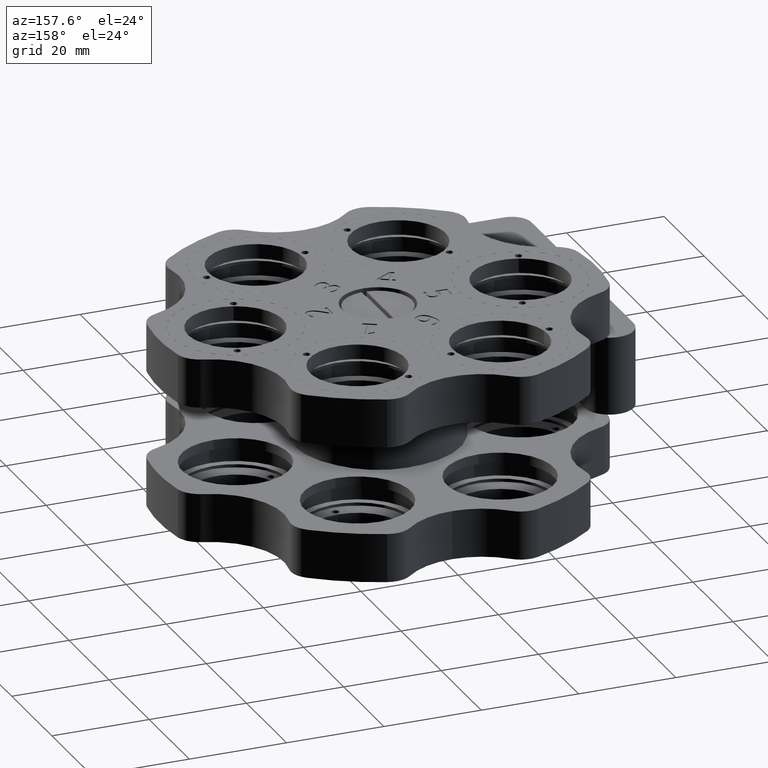
[diagram: clean part render]
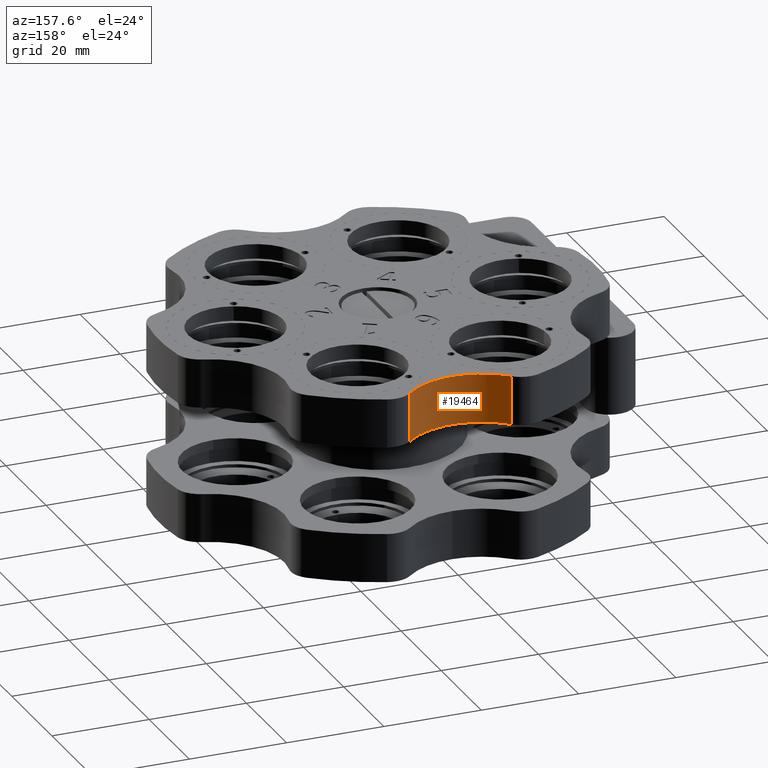
[diagram: same view with one face highlighted and labeled with its STEP entity id]
A machine part, auxiliary view. The second image highlights one B-rep face of the part: STEP entity #19464.
In plain terms, the highlighted cylindrical surface (partial cylindrical patch) has radius 15 mm, axis along (0, 0, -1).
Its self-contained STEP definition (entity closure, byte-faithful):
#732 = CARTESIAN_POINT ( 'NONE',  ( -10.36151276337395700, 41.15384615384681400, 11.00000000000001100 ) ) ;
#900 = LINE ( 'NONE', #2227, #22323 ) ;
#1144 = DIRECTION ( 'NONE',  ( -5.135813185032623800E-032, 1.000000000000000000, 2.312964634635740500E-016 ) ) ;
#1256 = CIRCLE ( 'NONE', #14701, 15.00000000000001400 ) ;
#2227 = CARTESIAN_POINT ( 'NONE',  ( 10.36151276337396400, 41.15384615384685700, 11.00000000000001200 ) ) ;
#3118 = DIRECTION ( 'NONE',  ( -5.135813185032623800E-032, 1.000000000000000000, 2.312964634635740500E-016 ) ) ;
#3841 = EDGE_LOOP ( 'NONE', ( #18470, #14702, #23012, #7886 ) ) ;
#4057 = VERTEX_POINT ( 'NONE', #22508 ) ;
#4667 = VERTEX_POINT ( 'NONE', #22244 ) ;
#6057 = VERTEX_POINT ( 'NONE', #18079 ) ;
#6060 = EDGE_CURVE ( 'NONE', #4667, #7621, #22156, .T. ) ;
#7426 = EDGE_CURVE ( 'NONE', #4057, #7621, #22336, .T. ) ;
#7621 = VERTEX_POINT ( 'NONE', #24814 ) ;
#7886 = ORIENTED_EDGE ( 'NONE', *, *, #15013, .T. ) ;
#8863 = CARTESIAN_POINT ( 'NONE',  ( 5.624554276440087900E-015, 52.00000000000068200, 11.00000000000001400 ) ) ;
#10179 = DIRECTION ( 'NONE',  ( 1.418662626296614000E-016, 2.885270652500998800E-016, -1.000000000000000000 ) ) ;
#10999 = DIRECTION ( 'NONE',  ( 1.418662626296614000E-016, 2.885270652500998800E-016, -1.000000000000000000 ) ) ;
#11818 = VECTOR ( 'NONE', #21018, 1000.000000000000000 ) ;
#12411 = CYLINDRICAL_SURFACE ( 'NONE', #21629, 15.00000000000001400 ) ;
#13048 = FACE_OUTER_BOUND ( 'NONE', #3841, .T. ) ;
#14699 = EDGE_CURVE ( 'NONE', #6057, #4057, #1256, .T. ) ;
#14701 = AXIS2_PLACEMENT_3D ( 'NONE', #8863, #10999, #1144 ) ;
#14702 = ORIENTED_EDGE ( 'NONE', *, *, #7426, .F. ) ;
#15013 = EDGE_CURVE ( 'NONE', #6057, #4667, #900, .T. ) ;
#16101 = DIRECTION ( 'NONE',  ( 1.418662626296614000E-016, 2.885270652500998800E-016, -1.000000000000000000 ) ) ;
#17545 = CARTESIAN_POINT ( 'NONE',  ( 5.624554276440087900E-015, 52.00000000000068200, 11.00000000000001400 ) ) ;
#18079 = CARTESIAN_POINT ( 'NONE',  ( 10.36151276337396400, 41.15384615384685700, 11.00000000000001200 ) ) ;
#18470 = ORIENTED_EDGE ( 'NONE', *, *, #6060, .T. ) ;
#19464 = ADVANCED_FACE ( 'NONE', ( #13048 ), #12411, .F. ) ;
#19881 = CARTESIAN_POINT ( 'NONE',  ( 7.043216902736701900E-015, 52.00000000000068200, 1.000000000000014700 ) ) ;
#21018 = DIRECTION ( 'NONE',  ( 1.418662626296614000E-016, 2.885270652500998800E-016, -1.000000000000000000 ) ) ;
#21629 = AXIS2_PLACEMENT_3D ( 'NONE', #17545, #21654, #3118 ) ;
#21654 = DIRECTION ( 'NONE',  ( 1.418662626296614000E-016, 2.885270652500998800E-016, -1.000000000000000000 ) ) ;
#21929 = AXIS2_PLACEMENT_3D ( 'NONE', #19881, #16101, #26012 ) ;
#22156 = CIRCLE ( 'NONE', #21929, 15.00000000000001400 ) ;
#22244 = CARTESIAN_POINT ( 'NONE',  ( 10.36151276337396600, 41.15384615384685700, 1.000000000000013300 ) ) ;
#22323 = VECTOR ( 'NONE', #10179, 1000.000000000000000 ) ;
#22336 = LINE ( 'NONE', #732, #11818 ) ;
#22508 = CARTESIAN_POINT ( 'NONE',  ( -10.36151276337395700, 41.15384615384681400, 11.00000000000001100 ) ) ;
#23012 = ORIENTED_EDGE ( 'NONE', *, *, #14699, .F. ) ;
#24814 = CARTESIAN_POINT ( 'NONE',  ( -10.36151276337395500, 41.15384615384681400, 1.000000000000010200 ) ) ;
#26012 = DIRECTION ( 'NONE',  ( 0.0000000000000000000, 1.000000000000000000, 2.891205793294675900E-016 ) ) ;